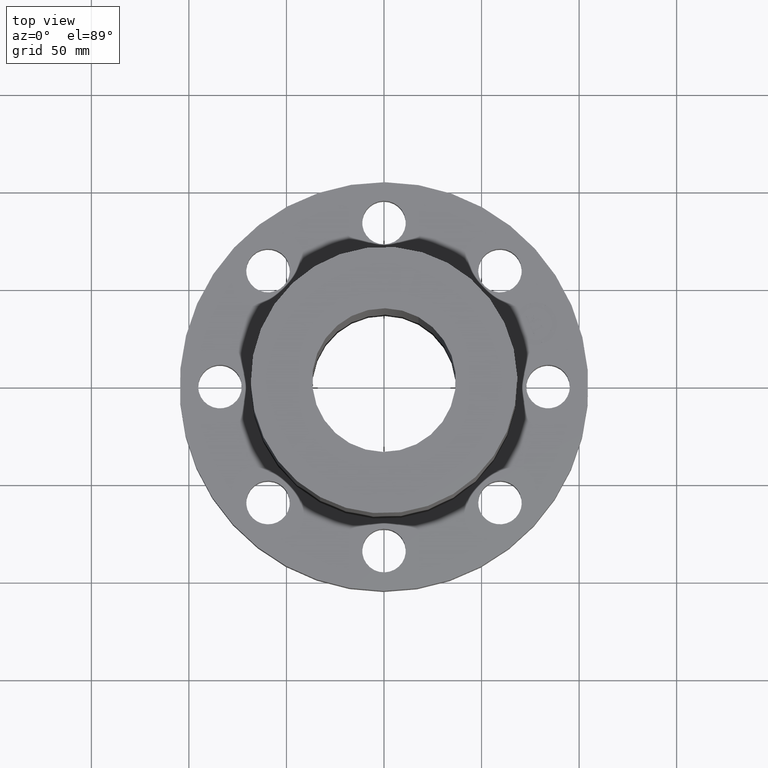
[diagram: clean part render]
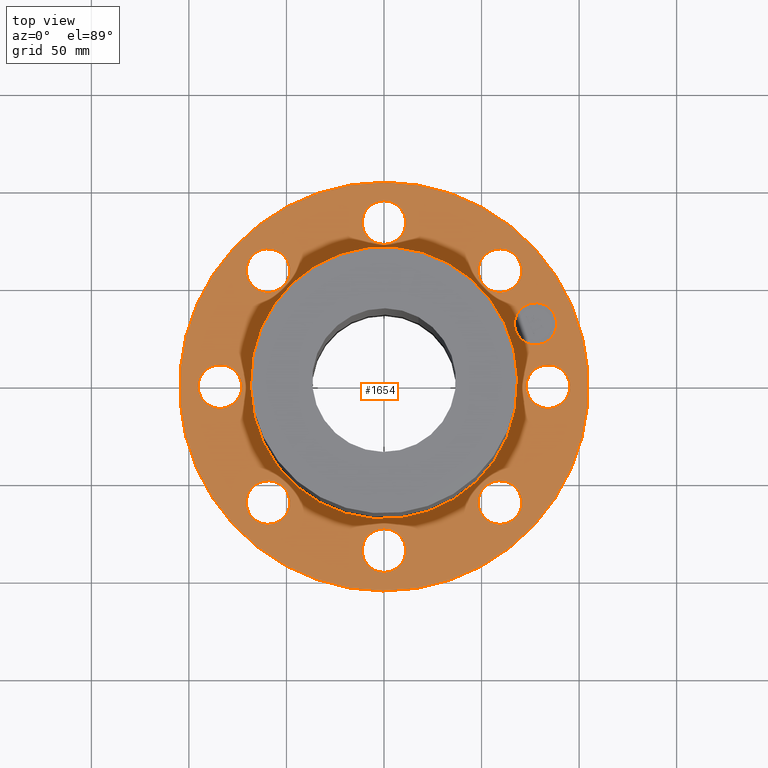
[diagram: same view with one face highlighted and labeled with its STEP entity id]
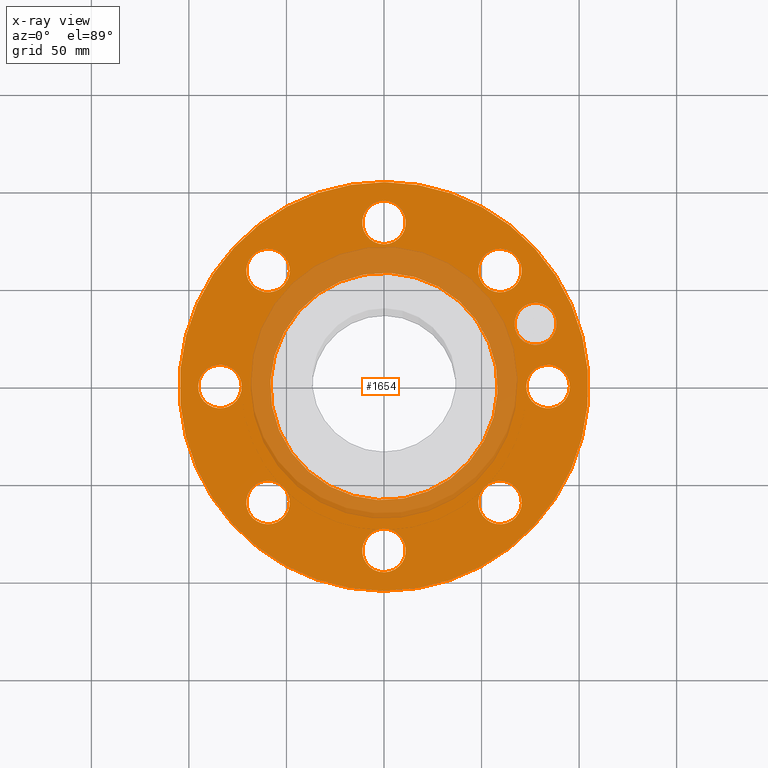
[diagram: x-ray of the same camera — body ghosted, the highlighted face saturated]
A machine part, top view. The second image highlights one B-rep face of the part: STEP entity #1654.
The next image is the same camera in x-ray: the body ghosted, the highlighted face saturated — about 21% of this face is hidden behind the body in this view.
In plain terms, the highlighted planar face has unit normal (0, 0, -1).
Its self-contained STEP definition (entity closure, byte-faithful):
#51=AXIS2_PLACEMENT_3D('Circle Axis2P3D',#49,#50,$) ;
#366=AXIS2_PLACEMENT_3D('Circle Axis2P3D',#364,#365,$) ;
#413=AXIS2_PLACEMENT_3D('Circle Axis2P3D',#411,#412,$) ;
#432=AXIS2_PLACEMENT_3D('Circle Axis2P3D',#430,#431,$) ;
#610=AXIS2_PLACEMENT_3D('Circle Axis2P3D',#608,#609,$) ;
#645=AXIS2_PLACEMENT_3D('Circle Axis2P3D',#643,#644,$) ;
#1276=AXIS2_PLACEMENT_3D('Circle Axis2P3D',#1274,#1275,$) ;
#1295=AXIS2_PLACEMENT_3D('Circle Axis2P3D',#1293,#1294,$) ;
#1323=AXIS2_PLACEMENT_3D('Circle Axis2P3D',#1321,#1322,$) ;
#1342=AXIS2_PLACEMENT_3D('Circle Axis2P3D',#1340,#1341,$) ;
#1370=AXIS2_PLACEMENT_3D('Circle Axis2P3D',#1368,#1369,$) ;
#1389=AXIS2_PLACEMENT_3D('Circle Axis2P3D',#1387,#1388,$) ;
#1417=AXIS2_PLACEMENT_3D('Circle Axis2P3D',#1415,#1416,$) ;
#1436=AXIS2_PLACEMENT_3D('Circle Axis2P3D',#1434,#1435,$) ;
#1464=AXIS2_PLACEMENT_3D('Circle Axis2P3D',#1462,#1463,$) ;
#1483=AXIS2_PLACEMENT_3D('Circle Axis2P3D',#1481,#1482,$) ;
#1511=AXIS2_PLACEMENT_3D('Circle Axis2P3D',#1509,#1510,$) ;
#1530=AXIS2_PLACEMENT_3D('Circle Axis2P3D',#1528,#1529,$) ;
#1558=AXIS2_PLACEMENT_3D('Circle Axis2P3D',#1556,#1557,$) ;
#1577=AXIS2_PLACEMENT_3D('Circle Axis2P3D',#1575,#1576,$) ;
#1594=AXIS2_PLACEMENT_3D('Plane Axis2P3D',#1591,#1592,#1593) ;
#1638=AXIS2_PLACEMENT_3D('Circle Axis2P3D',#1636,#1637,$) ;
#1647=AXIS2_PLACEMENT_3D('Circle Axis2P3D',#1645,#1646,$) ;
#44=CARTESIAN_POINT('Vertex',(2.92386367278,-0.210947236987,1.25)) ;
#49=CARTESIAN_POINT('Axis2P3D Location',(3.31000000001,0.,1.25000000001)) ;
#53=CARTESIAN_POINT('Vertex',(3.69613632725,0.210947236987,1.25)) ;
#364=CARTESIAN_POINT('Axis2P3D Location',(3.31000000001,0.,1.25000000001)) ;
#408=CARTESIAN_POINT('Vertex',(-1.97763034675,-3.62002806781,1.25000000001)) ;
#411=CARTESIAN_POINT('Axis2P3D Location',(0.,0.,1.25000000001)) ;
#415=CARTESIAN_POINT('Vertex',(1.97763034675,3.62002806781,1.25000000001)) ;
#430=CARTESIAN_POINT('Axis2P3D Location',(0.,0.,1.25000000001)) ;
#608=CARTESIAN_POINT('Axis2P3D Location',(0.,0.,1.25000000001)) ;
#612=CARTESIAN_POINT('Vertex',(1.1002816111,2.01405197955,1.25000000001)) ;
#614=CARTESIAN_POINT('Vertex',(-1.1002816111,-2.01405197955,1.25000000001)) ;
#643=CARTESIAN_POINT('Axis2P3D Location',(0.,0.,1.25000000001)) ;
#1271=CARTESIAN_POINT('Vertex',(1.91832160854,-2.21664605203,1.25000000001)) ;
#1274=CARTESIAN_POINT('Axis2P3D Location',(2.34052344574,-2.34052344574,1.25000000001)) ;
#1278=CARTESIAN_POINT('Vertex',(2.76272528293,-2.46440083944,1.25000000001)) ;
#1293=CARTESIAN_POINT('Axis2P3D Location',(2.34052344574,-2.34052344574,1.25000000001)) ;
#1318=CARTESIAN_POINT('Vertex',(-0.210947236987,-2.92386367278,1.25000000001)) ;
#1321=CARTESIAN_POINT('Axis2P3D Location',(-3.56803423843E-016,-3.31000000001,1.25000000001)) ;
#1325=CARTESIAN_POINT('Vertex',(0.210947236987,-3.69613632725,1.25000000001)) ;
#1340=CARTESIAN_POINT('Axis2P3D Location',(-3.56803423843E-016,-3.31000000001,1.25000000001)) ;
#1365=CARTESIAN_POINT('Vertex',(-2.21664605203,-1.91832160854,1.25000000001)) ;
#1368=CARTESIAN_POINT('Axis2P3D Location',(-2.34052344574,-2.34052344574,1.25000000001)) ;
#1372=CARTESIAN_POINT('Vertex',(-2.46440083944,-2.76272528293,1.25000000001)) ;
#1387=CARTESIAN_POINT('Axis2P3D Location',(-2.34052344574,-2.34052344574,1.25000000001)) ;
#1412=CARTESIAN_POINT('Vertex',(-2.92386367278,0.210947236987,1.25000000001)) ;
#1415=CARTESIAN_POINT('Axis2P3D Location',(-3.31000000001,-4.05358090519E-016,1.25000000001)) ;
#1419=CARTESIAN_POINT('Vertex',(-3.69613632725,-0.210947236987,1.25000000001)) ;
#1434=CARTESIAN_POINT('Axis2P3D Location',(-3.31000000001,-4.05358090519E-016,1.25000000001)) ;
#1459=CARTESIAN_POINT('Vertex',(-1.91832160854,2.21664605203,1.25000000001)) ;
#1462=CARTESIAN_POINT('Axis2P3D Location',(-2.34052344574,2.34052344574,1.25000000001)) ;
#1466=CARTESIAN_POINT('Vertex',(-2.76272528293,2.46440083944,1.25000000001)) ;
#1481=CARTESIAN_POINT('Axis2P3D Location',(-2.34052344574,2.34052344574,1.25000000001)) ;
#1506=CARTESIAN_POINT('Vertex',(0.210947236987,2.92386367278,1.25000000001)) ;
#1509=CARTESIAN_POINT('Axis2P3D Location',(-6.08037135779E-016,3.31000000001,1.25000000001)) ;
#1513=CARTESIAN_POINT('Vertex',(-0.210947236987,3.69613632725,1.25000000001)) ;
#1528=CARTESIAN_POINT('Axis2P3D Location',(-6.08037135779E-016,3.31000000001,1.25000000001)) ;
#1553=CARTESIAN_POINT('Vertex',(2.21664605203,1.91832160854,1.25000000001)) ;
#1556=CARTESIAN_POINT('Axis2P3D Location',(2.34052344574,2.34052344574,1.25000000001)) ;
#1560=CARTESIAN_POINT('Vertex',(2.46440083944,2.76272528293,1.25000000001)) ;
#1575=CARTESIAN_POINT('Axis2P3D Location',(2.34052344574,2.34052344574,1.25000000001)) ;
#1591=CARTESIAN_POINT('Axis2P3D Location',(0.,4.12500000002,1.25000000001)) ;
#1636=CARTESIAN_POINT('Axis2P3D Location',(3.05804125262,1.26668216113,1.25000000001)) ;
#1640=CARTESIAN_POINT('Vertex',(3.22068170975,0.874033363741,1.25000000001)) ;
#1642=CARTESIAN_POINT('Vertex',(2.8954007955,1.65933095853,1.25000000001)) ;
#1645=CARTESIAN_POINT('Axis2P3D Location',(3.05804125262,1.26668216113,1.25000000001)) ;
#50=DIRECTION('Axis2P3D Direction',(0.,-0.,0.0393700787402)) ;
#365=DIRECTION('Axis2P3D Direction',(0.,-0.,0.0393700787402)) ;
#412=DIRECTION('Axis2P3D Direction',(0.,0.,-0.0393700787402)) ;
#431=DIRECTION('Axis2P3D Direction',(0.,0.,-0.0393700787402)) ;
#609=DIRECTION('Axis2P3D Direction',(0.,0.,-0.0393700787402)) ;
#644=DIRECTION('Axis2P3D Direction',(0.,0.,-0.0393700787402)) ;
#1275=DIRECTION('Axis2P3D Direction',(-0.,0.,0.0393700787402)) ;
#1294=DIRECTION('Axis2P3D Direction',(-0.,0.,0.0393700787402)) ;
#1322=DIRECTION('Axis2P3D Direction',(-0.,0.,0.0393700787402)) ;
#1341=DIRECTION('Axis2P3D Direction',(-0.,0.,0.0393700787402)) ;
#1369=DIRECTION('Axis2P3D Direction',(0.,0.,0.0393700787402)) ;
#1388=DIRECTION('Axis2P3D Direction',(0.,0.,0.0393700787402)) ;
#1416=DIRECTION('Axis2P3D Direction',(0.,0.,0.0393700787402)) ;
#1435=DIRECTION('Axis2P3D Direction',(0.,0.,0.0393700787402)) ;
#1463=DIRECTION('Axis2P3D Direction',(0.,0.,0.0393700787402)) ;
#1482=DIRECTION('Axis2P3D Direction',(0.,0.,0.0393700787402)) ;
#1510=DIRECTION('Axis2P3D Direction',(0.,0.,0.0393700787402)) ;
#1529=DIRECTION('Axis2P3D Direction',(0.,0.,0.0393700787402)) ;
#1557=DIRECTION('Axis2P3D Direction',(0.,-0.,0.0393700787402)) ;
#1576=DIRECTION('Axis2P3D Direction',(0.,-0.,0.0393700787402)) ;
#1592=DIRECTION('Axis2P3D Direction',(0.,0.,-0.0393700787402)) ;
#1593=DIRECTION('Axis2P3D XDirection',(0.0393700787402,0.,0.)) ;
#1637=DIRECTION('Axis2P3D Direction',(0.,0.,-0.0393700787402)) ;
#1646=DIRECTION('Axis2P3D Direction',(0.,0.,-0.0393700787402)) ;
#1597=ORIENTED_EDGE('',*,*,#434,.F.) ;
#1598=ORIENTED_EDGE('',*,*,#417,.F.) ;
#1601=ORIENTED_EDGE('',*,*,#55,.T.) ;
#1602=ORIENTED_EDGE('',*,*,#368,.T.) ;
#1605=ORIENTED_EDGE('',*,*,#647,.T.) ;
#1606=ORIENTED_EDGE('',*,*,#616,.T.) ;
#1609=ORIENTED_EDGE('',*,*,#1297,.T.) ;
#1610=ORIENTED_EDGE('',*,*,#1280,.T.) ;
#1613=ORIENTED_EDGE('',*,*,#1344,.T.) ;
#1614=ORIENTED_EDGE('',*,*,#1327,.T.) ;
#1617=ORIENTED_EDGE('',*,*,#1391,.T.) ;
#1618=ORIENTED_EDGE('',*,*,#1374,.T.) ;
#1621=ORIENTED_EDGE('',*,*,#1438,.T.) ;
#1622=ORIENTED_EDGE('',*,*,#1421,.T.) ;
#1625=ORIENTED_EDGE('',*,*,#1485,.T.) ;
#1626=ORIENTED_EDGE('',*,*,#1468,.T.) ;
#1629=ORIENTED_EDGE('',*,*,#1532,.T.) ;
#1630=ORIENTED_EDGE('',*,*,#1515,.T.) ;
#1633=ORIENTED_EDGE('',*,*,#1579,.T.) ;
#1634=ORIENTED_EDGE('',*,*,#1562,.T.) ;
#1651=ORIENTED_EDGE('',*,*,#1644,.F.) ;
#1652=ORIENTED_EDGE('',*,*,#1649,.F.) ;
#1603=FACE_BOUND('',#1600,.T.) ;
#1607=FACE_BOUND('',#1604,.T.) ;
#1611=FACE_BOUND('',#1608,.T.) ;
#1615=FACE_BOUND('',#1612,.T.) ;
#1619=FACE_BOUND('',#1616,.T.) ;
#1623=FACE_BOUND('',#1620,.T.) ;
#1627=FACE_BOUND('',#1624,.T.) ;
#1631=FACE_BOUND('',#1628,.T.) ;
#1635=FACE_BOUND('',#1632,.T.) ;
#1653=FACE_BOUND('',#1650,.T.) ;
#1654=ADVANCED_FACE('PartBody',(#1599,#1603,#1607,#1611,#1615,#1619,#1623,#1627,#1631,#1635,#1653),#1595,.F.) ;
#52=CIRCLE('generated circle',#51,0.440000000002) ;
#367=CIRCLE('generated circle',#366,0.440000000002) ;
#414=CIRCLE('generated circle',#413,4.12500000002) ;
#433=CIRCLE('generated circle',#432,4.12500000002) ;
#611=CIRCLE('generated circle',#610,2.29500000001) ;
#646=CIRCLE('generated circle',#645,2.29500000001) ;
#1277=CIRCLE('generated circle',#1276,0.440000000002) ;
#1296=CIRCLE('generated circle',#1295,0.440000000002) ;
#1324=CIRCLE('generated circle',#1323,0.440000000002) ;
#1343=CIRCLE('generated circle',#1342,0.440000000002) ;
#1371=CIRCLE('generated circle',#1370,0.440000000002) ;
#1390=CIRCLE('generated circle',#1389,0.440000000002) ;
#1418=CIRCLE('generated circle',#1417,0.440000000002) ;
#1437=CIRCLE('generated circle',#1436,0.440000000002) ;
#1465=CIRCLE('generated circle',#1464,0.440000000002) ;
#1484=CIRCLE('generated circle',#1483,0.440000000002) ;
#1512=CIRCLE('generated circle',#1511,0.440000000002) ;
#1531=CIRCLE('generated circle',#1530,0.440000000002) ;
#1559=CIRCLE('generated circle',#1558,0.440000000002) ;
#1578=CIRCLE('generated circle',#1577,0.440000000002) ;
#1639=CIRCLE('generated circle',#1638,0.424999995752) ;
#1648=CIRCLE('generated circle',#1647,0.424999995752) ;
#55=EDGE_CURVE('',#54,#45,#52,.F.) ;
#368=EDGE_CURVE('',#45,#54,#367,.F.) ;
#417=EDGE_CURVE('',#409,#416,#414,.T.) ;
#434=EDGE_CURVE('',#416,#409,#433,.T.) ;
#616=EDGE_CURVE('',#613,#615,#611,.T.) ;
#647=EDGE_CURVE('',#615,#613,#646,.T.) ;
#1280=EDGE_CURVE('',#1279,#1272,#1277,.F.) ;
#1297=EDGE_CURVE('',#1272,#1279,#1296,.F.) ;
#1327=EDGE_CURVE('',#1326,#1319,#1324,.F.) ;
#1344=EDGE_CURVE('',#1319,#1326,#1343,.F.) ;
#1374=EDGE_CURVE('',#1373,#1366,#1371,.F.) ;
#1391=EDGE_CURVE('',#1366,#1373,#1390,.F.) ;
#1421=EDGE_CURVE('',#1420,#1413,#1418,.F.) ;
#1438=EDGE_CURVE('',#1413,#1420,#1437,.F.) ;
#1468=EDGE_CURVE('',#1467,#1460,#1465,.F.) ;
#1485=EDGE_CURVE('',#1460,#1467,#1484,.F.) ;
#1515=EDGE_CURVE('',#1514,#1507,#1512,.F.) ;
#1532=EDGE_CURVE('',#1507,#1514,#1531,.F.) ;
#1562=EDGE_CURVE('',#1561,#1554,#1559,.F.) ;
#1579=EDGE_CURVE('',#1554,#1561,#1578,.F.) ;
#1644=EDGE_CURVE('',#1641,#1643,#1639,.F.) ;
#1649=EDGE_CURVE('',#1643,#1641,#1648,.F.) ;
#1596=EDGE_LOOP('',(#1597,#1598)) ;
#1600=EDGE_LOOP('',(#1601,#1602)) ;
#1604=EDGE_LOOP('',(#1605,#1606)) ;
#1608=EDGE_LOOP('',(#1609,#1610)) ;
#1612=EDGE_LOOP('',(#1613,#1614)) ;
#1616=EDGE_LOOP('',(#1617,#1618)) ;
#1620=EDGE_LOOP('',(#1621,#1622)) ;
#1624=EDGE_LOOP('',(#1625,#1626)) ;
#1628=EDGE_LOOP('',(#1629,#1630)) ;
#1632=EDGE_LOOP('',(#1633,#1634)) ;
#1650=EDGE_LOOP('',(#1651,#1652)) ;
#1599=FACE_OUTER_BOUND('',#1596,.T.) ;
#1595=PLANE('',#1594) ;
#45=VERTEX_POINT('',#44) ;
#54=VERTEX_POINT('',#53) ;
#409=VERTEX_POINT('',#408) ;
#416=VERTEX_POINT('',#415) ;
#613=VERTEX_POINT('',#612) ;
#615=VERTEX_POINT('',#614) ;
#1272=VERTEX_POINT('',#1271) ;
#1279=VERTEX_POINT('',#1278) ;
#1319=VERTEX_POINT('',#1318) ;
#1326=VERTEX_POINT('',#1325) ;
#1366=VERTEX_POINT('',#1365) ;
#1373=VERTEX_POINT('',#1372) ;
#1413=VERTEX_POINT('',#1412) ;
#1420=VERTEX_POINT('',#1419) ;
#1460=VERTEX_POINT('',#1459) ;
#1467=VERTEX_POINT('',#1466) ;
#1507=VERTEX_POINT('',#1506) ;
#1514=VERTEX_POINT('',#1513) ;
#1554=VERTEX_POINT('',#1553) ;
#1561=VERTEX_POINT('',#1560) ;
#1641=VERTEX_POINT('',#1640) ;
#1643=VERTEX_POINT('',#1642) ;